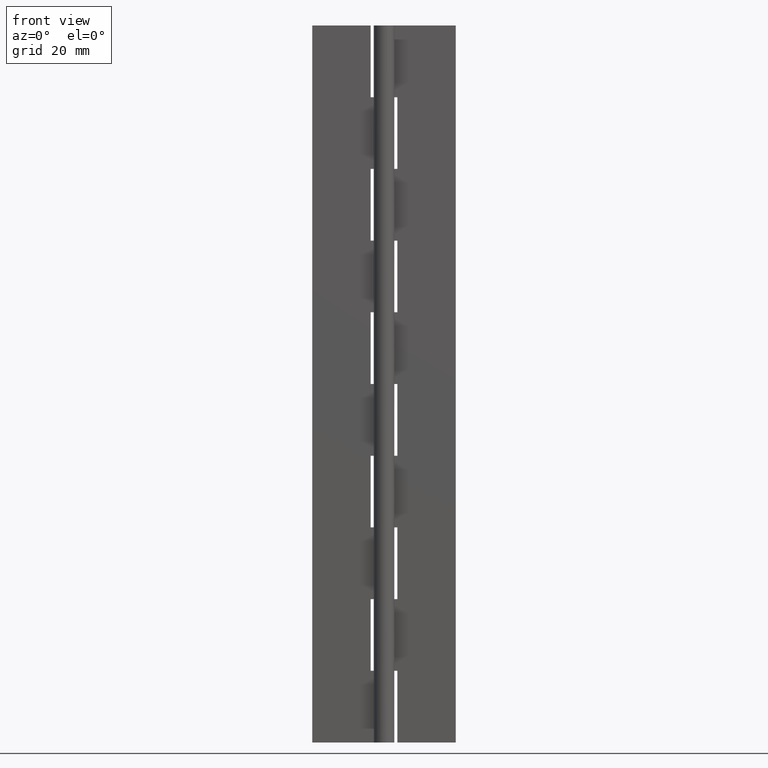
[diagram: clean part render]
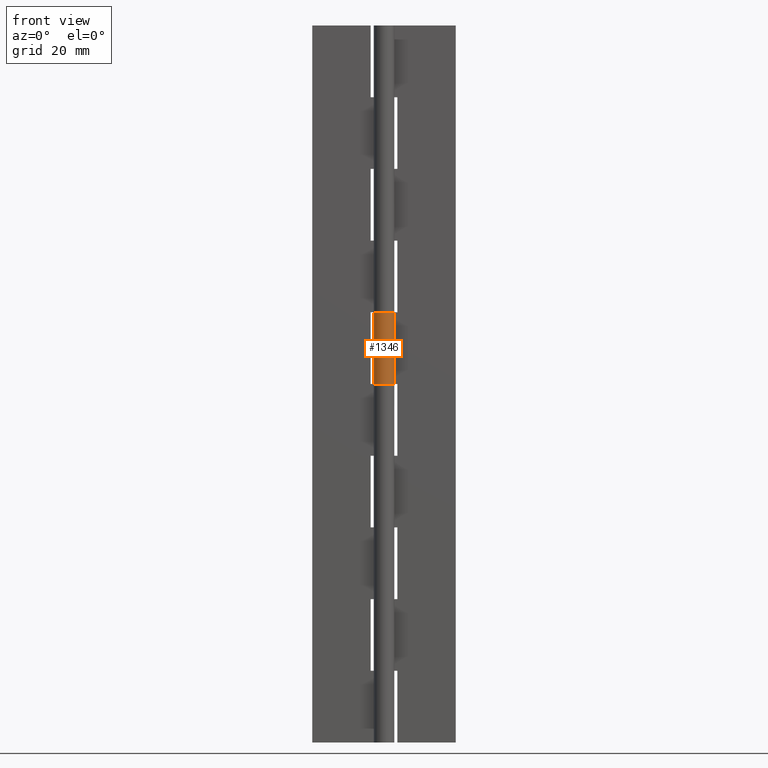
[diagram: same view with one face highlighted and labeled with its STEP entity id]
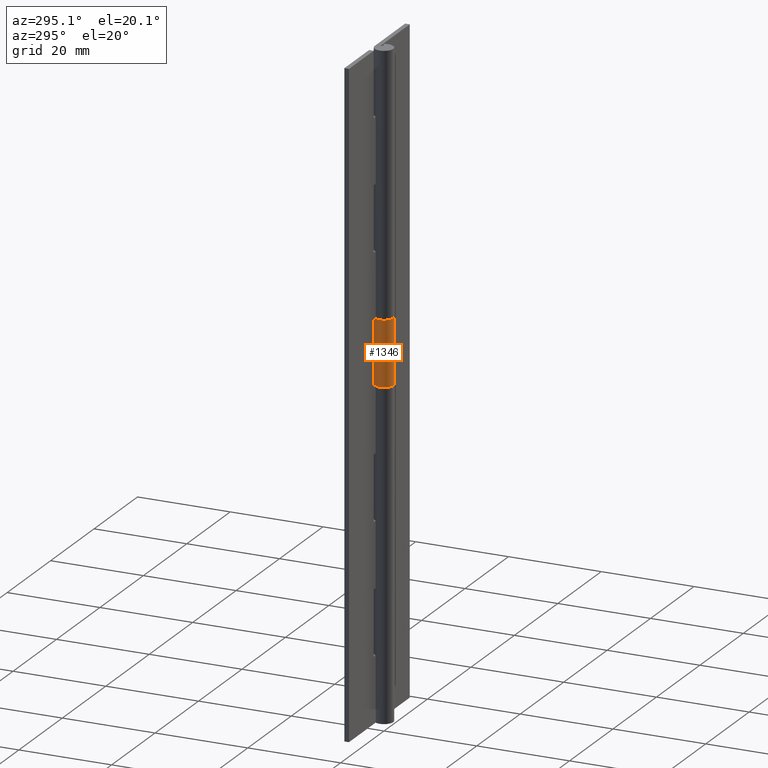
[diagram: same view with one face highlighted and labeled with its STEP entity id]
A machine part, front view. The second image highlights one B-rep face of the part: STEP entity #1346.
A second angle (auxiliary view) of the same face is appended — the face is thin or edge-on in the first view.
In plain terms, the highlighted face is a freeform B-spline surface patch.
Its self-contained STEP definition (entity closure, byte-faithful):
#269=CARTESIAN_POINT('',(-3.673807E-016,2.0,84.0));
#270=VERTEX_POINT('',#269);
#276=CARTESIAN_POINT('',(1.759971590679810,0.949999999999988,84.0));
#277=VERTEX_POINT('',#276);
#278=CARTESIAN_POINT('',(1.759971590679811,0.949999999999988,84.0));
#279=CARTESIAN_POINT('',(2.483544518215579,-0.390492417103159,84.0));
#280=CARTESIAN_POINT('',(1.383518044628761,-1.444256840103799,84.0));
#281=CARTESIAN_POINT('',(0.283491571041944,-2.498021263104437,84.0));
#282=CARTESIAN_POINT('',(-1.024695076595965,-1.717556403731764,84.0));
#283=CARTESIAN_POINT('',(-2.332881724233875,-0.937091544359090,84.0));
#284=CARTESIAN_POINT('',(-1.928096575312493,0.531454227820455,84.0));
#285=CARTESIAN_POINT('',(-1.523311426391112,2.000000000000000,84.0));
#286=CARTESIAN_POINT('',(0.0,2.0,84.0));
#294=(BOUNDED_CURVE()B_SPLINE_CURVE(2,(#278,#279,#280,#281,#282,#283,#284,#285,#286),.UNSPECIFIED.,.F.,.U.)B_SPLINE_CURVE_WITH_KNOTS((3,2,2,2,3),(0.0,0.250000000000000,0.500000000000000,0.750000000000000,1.0),.UNSPECIFIED.)CURVE()GEOMETRIC_REPRESENTATION_ITEM()RATIONAL_B_SPLINE_CURVE((1.0,0.795527219493534,1.0,0.795527219493534,1.0,0.795527219493534,1.0,0.795527219493534,1.0))REPRESENTATION_ITEM(''));
#295=EDGE_CURVE('',#277,#270,#294,.T.);
#535=CARTESIAN_POINT('',(1.759971590679810,0.949999999999988,70.0));
#536=VERTEX_POINT('',#535);
#542=CARTESIAN_POINT('',(-3.673807E-016,2.0,70.0));
#543=VERTEX_POINT('',#542);
#544=CARTESIAN_POINT('',(0.0,2.0,70.0));
#545=CARTESIAN_POINT('',(-1.523311426391111,2.000000000000000,70.0));
#546=CARTESIAN_POINT('',(-1.928096575312493,0.531454227820456,70.0));
#547=CARTESIAN_POINT('',(-2.332881724233876,-0.937091544359089,70.0));
#548=CARTESIAN_POINT('',(-1.024695076595966,-1.717556403731763,70.0));
#549=CARTESIAN_POINT('',(0.283491571041944,-2.498021263104438,70.0));
#550=CARTESIAN_POINT('',(1.383518044628761,-1.444256840103798,70.0));
#551=CARTESIAN_POINT('',(2.483544518215579,-0.390492417103159,70.0));
#552=CARTESIAN_POINT('',(1.759971590679811,0.949999999999988,70.0));
#560=(BOUNDED_CURVE()B_SPLINE_CURVE(2,(#544,#545,#546,#547,#548,#549,#550,#551,#552),.UNSPECIFIED.,.F.,.U.)B_SPLINE_CURVE_WITH_KNOTS((3,2,2,2,3),(0.0,0.250000000000000,0.500000000000000,0.750000000000000,1.0),.UNSPECIFIED.)CURVE()GEOMETRIC_REPRESENTATION_ITEM()RATIONAL_B_SPLINE_CURVE((1.0,0.795527219493534,1.0,0.795527219493534,1.0,0.795527219493534,1.0,0.795527219493534,1.0))REPRESENTATION_ITEM(''));
#561=EDGE_CURVE('',#543,#536,#560,.T.);
#1012=CARTESIAN_POINT('',(-3.673807E-016,2.0,84.0));
#1013=CARTESIAN_POINT('',(-3.673807E-016,2.0,70.0));
#1014=QUASI_UNIFORM_CURVE('',1,(#1012,#1013),.UNSPECIFIED.,.F.,.U.);
#1015=EDGE_CURVE('',#270,#543,#1014,.T.);
#1275=CARTESIAN_POINT('',(1.759971590679810,0.949999999999988,84.0));
#1276=CARTESIAN_POINT('',(1.759971590679810,0.949999999999988,70.0));
#1277=QUASI_UNIFORM_CURVE('',1,(#1275,#1276),.UNSPECIFIED.,.F.,.U.);
#1278=EDGE_CURVE('',#277,#536,#1277,.T.);
#1318=CARTESIAN_POINT('',(0.074705397571538,1.998604288891044,84.350000000000009));
#1319=CARTESIAN_POINT('',(0.074705397571538,1.998604288891044,69.641249999999985));
#1320=CARTESIAN_POINT('',(-2.378738422527856,2.090311034953146,84.350000000000009));
#1321=CARTESIAN_POINT('',(-2.378738422527856,2.090311034953146,69.641249999999985));
#1322=CARTESIAN_POINT('',(-1.972421111082869,-0.330990876844993,84.350000000000009));
#1323=CARTESIAN_POINT('',(-1.972421111082869,-0.330990876844993,69.641249999999985));
#1324=CARTESIAN_POINT('',(-1.566103799637883,-2.752292788643133,84.350000000000009));
#1325=CARTESIAN_POINT('',(-1.566103799637883,-2.752292788643133,69.641249999999985));
#1326=CARTESIAN_POINT('',(0.723011019827740,-1.864739945731750,84.350000000000009));
#1327=CARTESIAN_POINT('',(0.723011019827740,-1.864739945731750,69.641249999999985));
#1328=CARTESIAN_POINT('',(3.012125839293363,-0.977187102820367,84.350000000000009));
#1329=CARTESIAN_POINT('',(3.012125839293363,-0.977187102820367,69.641249999999985));
#1330=CARTESIAN_POINT('',(1.680010044685116,1.085157246557895,84.350000000000009));
#1331=CARTESIAN_POINT('',(1.680010044685116,1.085157246557895,69.641249999999985));
#1339=(BOUNDED_SURFACE()B_SPLINE_SURFACE(1,2,((#1318,#1320,#1322,#1324,#1326,#1328,#1330),(#1319,#1321,#1323,#1325,#1327,#1329,#1331)),.UNSPECIFIED.,.F.,.F.,.U.)B_SPLINE_SURFACE_WITH_KNOTS((2,2),(3,2,2,3),(0.0,14.708750000000030),(0.0,3.801531476131834,7.603062952263668,11.404594428395500),.UNSPECIFIED.)GEOMETRIC_REPRESENTATION_ITEM()RATIONAL_B_SPLINE_SURFACE(((1.0,0.631578351302498,1.0,0.631578351302498,1.0,0.631578351302498,1.0),(1.0,0.631578351302498,1.0,0.631578351302498,1.0,0.631578351302498,1.0)))REPRESENTATION_ITEM('')SURFACE());
#1340=ORIENTED_EDGE('',*,*,#1278,.F.);
#1341=ORIENTED_EDGE('',*,*,#295,.T.);
#1342=ORIENTED_EDGE('',*,*,#1015,.T.);
#1343=ORIENTED_EDGE('',*,*,#561,.T.);
#1344=EDGE_LOOP('',(#1340,#1341,#1342,#1343));
#1345=FACE_OUTER_BOUND('',#1344,.T.);
#1346=ADVANCED_FACE('',(#1345),#1339,.T.);